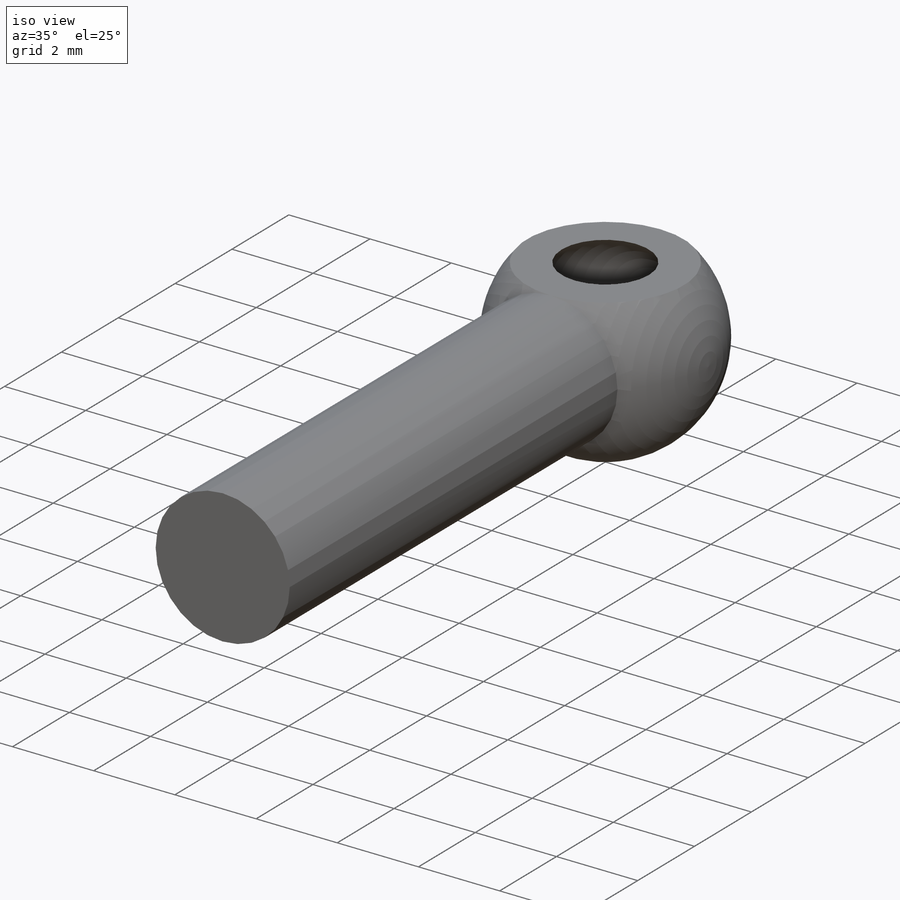
[diagram: iso view]
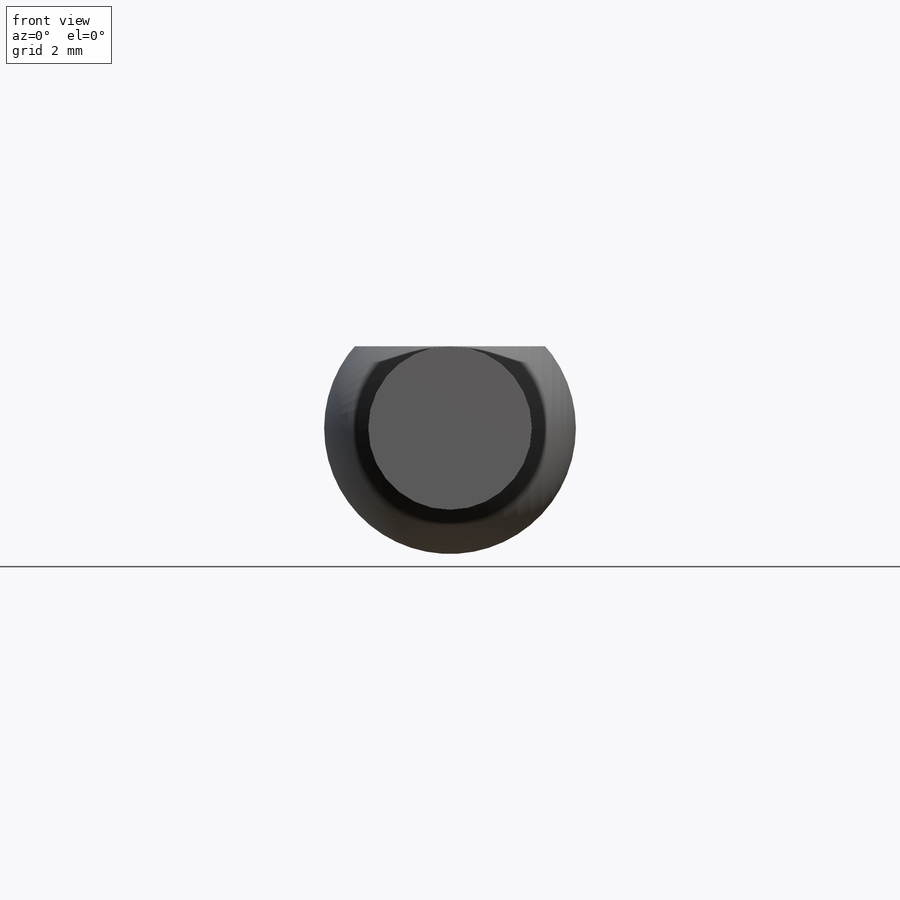
[diagram: front view]
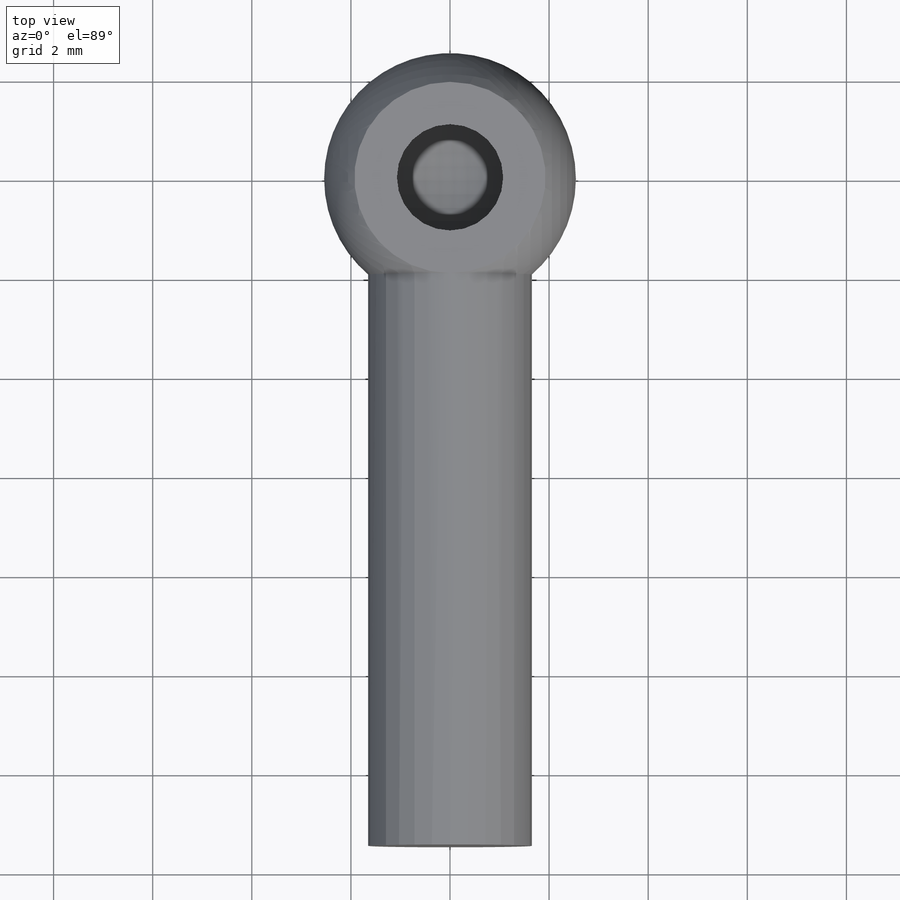
[diagram: top view]
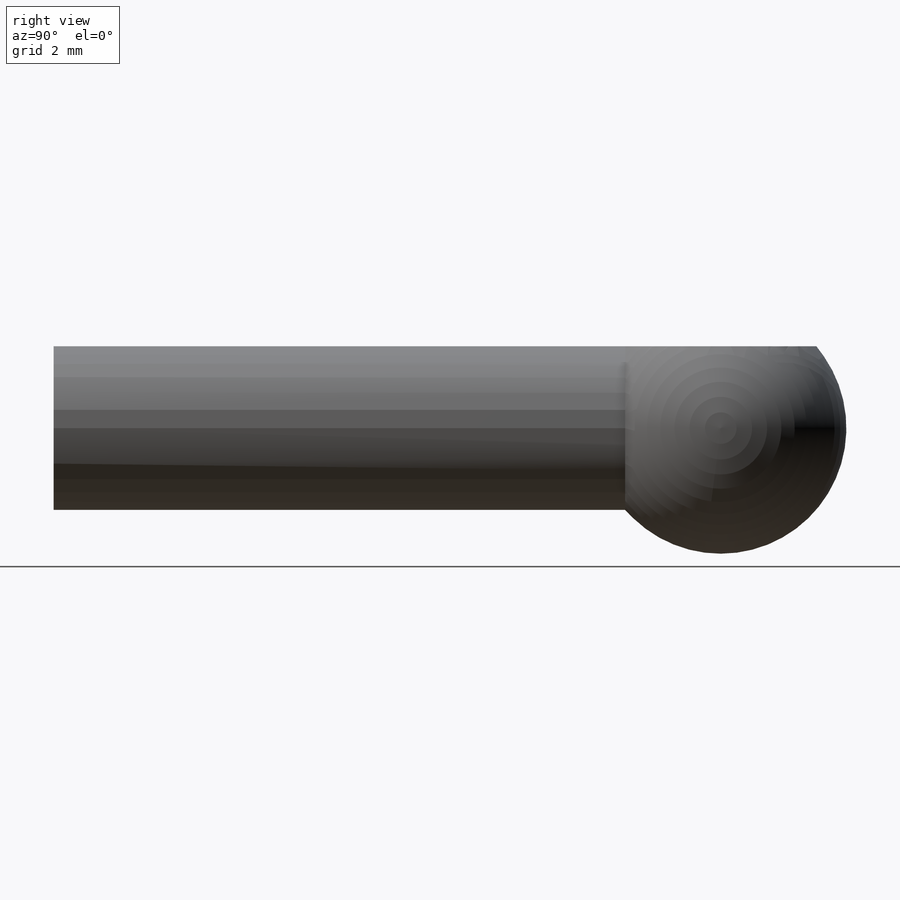
[diagram: right view]
SOLIDWORKS PART (.sldprt)
format: sldprt  version: not decoded by parser v0  size: 222,208 bytes
history: native  units: mm
features: sketch x7, plane x2, material x1, extrude x1, revolve x1, cut_extrude x1, cut_revolve x1 (+16 scaffold rows collapsed)
feature tree (30):
  scaffold x16  (default folders/planes/origin — collapsed)
  material  "Material <not specified>"
  sketch  "Sketch1"  dims[D1=1.778mm]
  extrude  "Extrude1"  Depth=13.462mm
  sketch  "Sketch3"
  sketch  "Sketch4"
  sketch  "Sketch5"
  plane  "Plane1"
  plane  "Plane2"
  sketch  "Sketch2"  dims[D1=2.794mm]
  revolve  "Revolve1"  Angle=360deg
  sketch  "Sketch6"
  cut_extrude  "Extrude2"  [1 undecoded]
  sketch  "Sketch7"  dims[D1=~1.689591mm]
  cut_revolve  "Cut-Revolve1"  Angle=360deg
decode coverage: 6 of 11 modeling features carry decoded parameters
note: ~ marks probable driven/reference dimensions
note: 1 parameter value undecoded
note: suppression state not decoded; provenance and decode notes live in map.json
